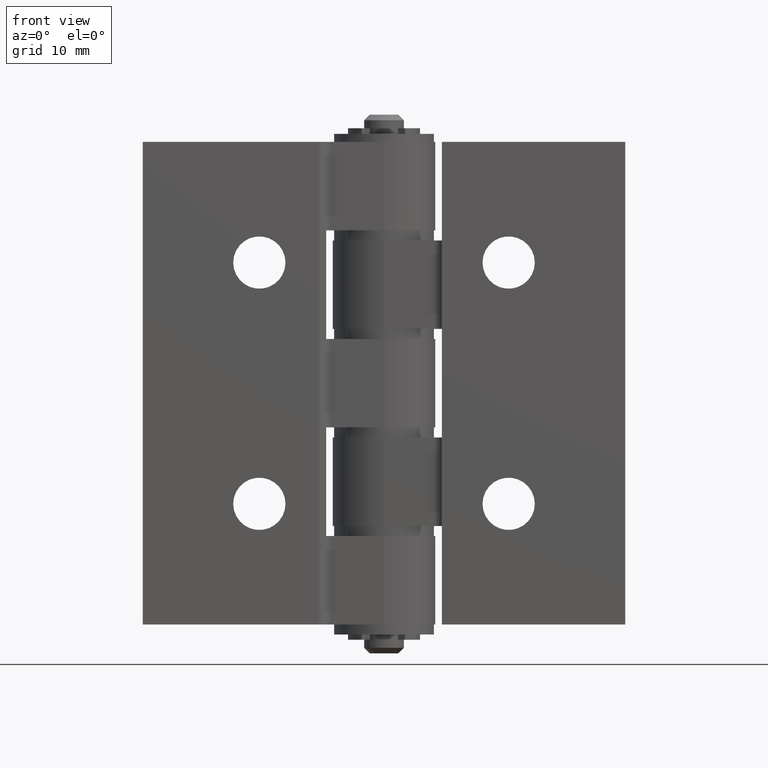
[diagram: clean part render]
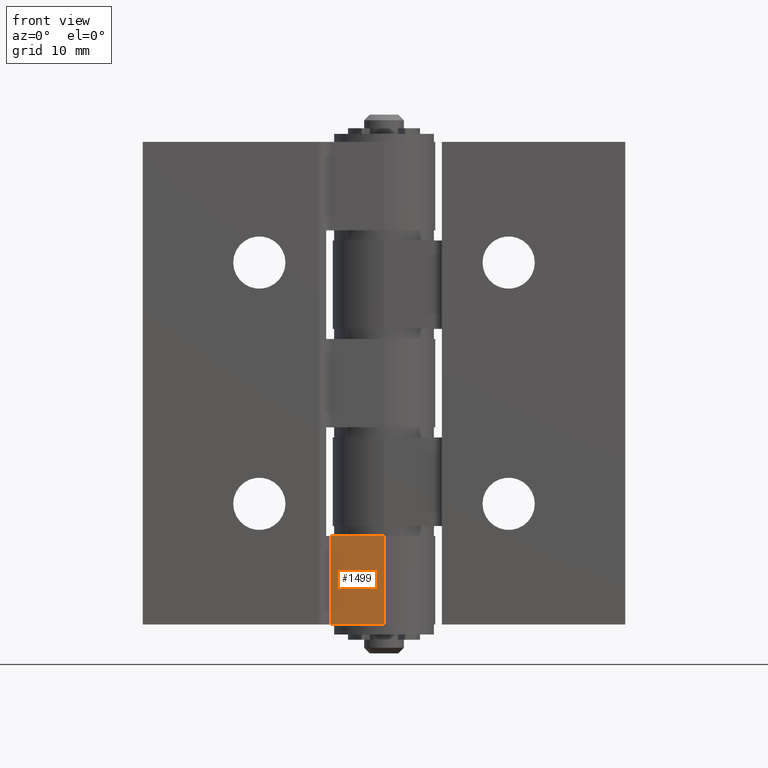
[diagram: same view with one face highlighted and labeled with its STEP entity id]
A machine part, front view. The second image highlights one B-rep face of the part: STEP entity #1499.
In plain terms, the highlighted planar face has unit normal (-0, 1, 0).
Its self-contained STEP definition (entity closure, byte-faithful):
#146=PLANE('',#1629);
#204=FACE_OUTER_BOUND('',#308,.T.);
#308=EDGE_LOOP('',(#1160,#1161,#1162,#1163));
#423=LINE('',#2293,#526);
#445=LINE('',#2379,#548);
#457=LINE('',#2411,#560);
#458=LINE('',#2420,#561);
#526=VECTOR('',#1788,11.);
#548=VECTOR('',#1872,6.68013158464293);
#560=VECTOR('',#1902,6.68013158464293);
#561=VECTOR('',#1915,11.);
#718=VERTEX_POINT('',#2286);
#721=VERTEX_POINT('',#2291);
#754=VERTEX_POINT('',#2377);
#765=VERTEX_POINT('',#2410);
#863=EDGE_CURVE('',#721,#718,#423,.T.);
#904=EDGE_CURVE('',#754,#721,#445,.T.);
#921=EDGE_CURVE('',#765,#718,#457,.F.);
#926=EDGE_CURVE('',#765,#754,#458,.T.);
#1160=ORIENTED_EDGE('',*,*,#863,.F.);
#1161=ORIENTED_EDGE('',*,*,#904,.F.);
#1162=ORIENTED_EDGE('',*,*,#926,.F.);
#1163=ORIENTED_EDGE('',*,*,#921,.T.);
#1499=ADVANCED_FACE('',(#204),#146,.F.);
#1629=AXIS2_PLACEMENT_3D('',#2422,#1918,#1919);
#1788=DIRECTION('',(0.,0.,1.));
#1872=DIRECTION('',(-1.,-2.50571168752206E-16,0.));
#1902=DIRECTION('',(1.,2.50571168752206E-16,0.));
#1915=DIRECTION('',(0.,0.,-1.));
#1918=DIRECTION('center_axis',(-2.50571168752206E-16,1.,0.));
#1919=DIRECTION('ref_axis',(1.,2.55351295663786E-16,0.));
#2286=CARTESIAN_POINT('',(-6.68013158464293,0.699999999999997,-49.));
#2291=CARTESIAN_POINT('',(-6.68013158464293,0.699999999999997,-60.));
#2293=CARTESIAN_POINT('',(-6.68013158464293,0.699999999999997,0.));
#2377=CARTESIAN_POINT('',(0.,0.699999999999998,-60.));
#2379=CARTESIAN_POINT('',(-11.1,0.699999999999996,-60.));
#2410=CARTESIAN_POINT('',(0.,0.699999999999998,-49.));
#2411=CARTESIAN_POINT('',(1.3,0.699999999999999,-49.));
#2420=CARTESIAN_POINT('',(0.,0.699999999999998,0.));
#2422=CARTESIAN_POINT('Origin',(-7.2,0.699999999999997,0.));